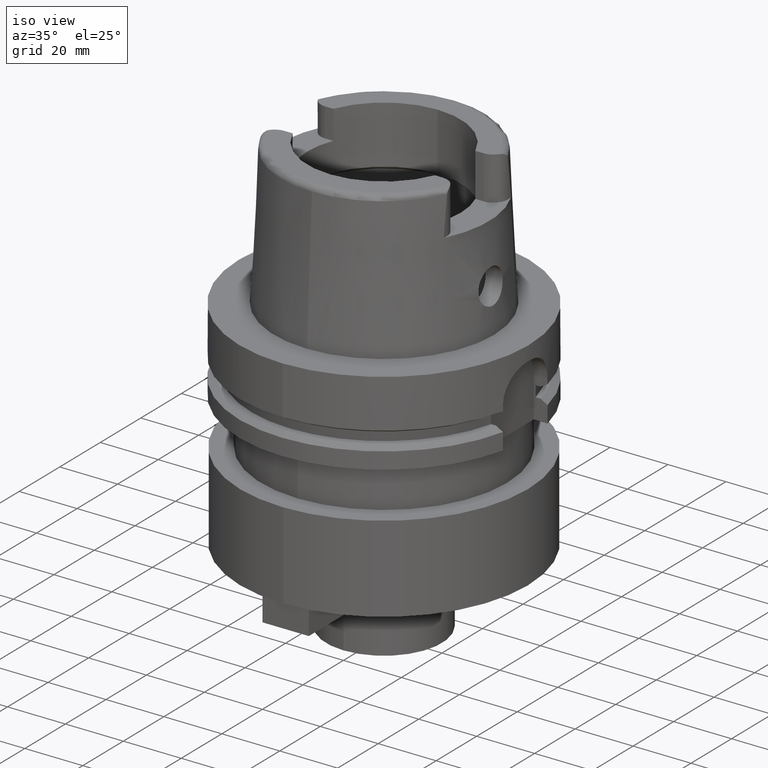
[diagram: clean part render]
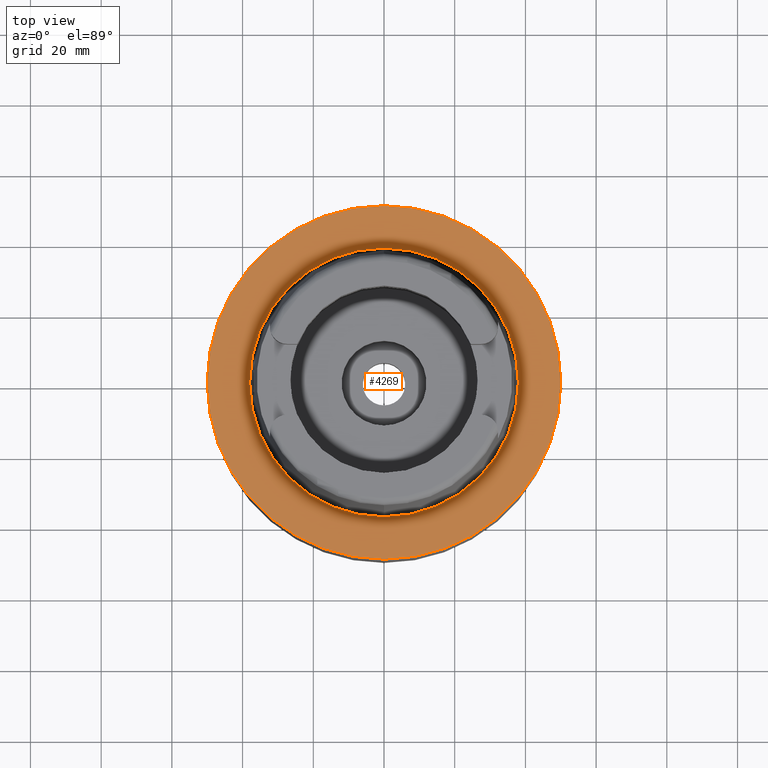
[diagram: tour spotlight — one face highlighted and labeled with its STEP entity id]
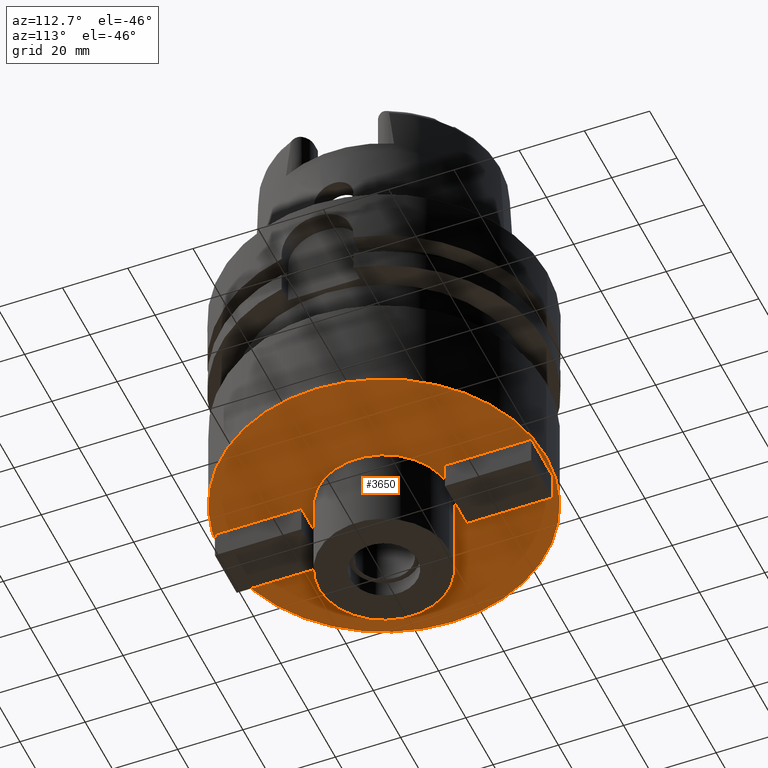
[diagram: tour spotlight — one face highlighted and labeled with its STEP entity id]
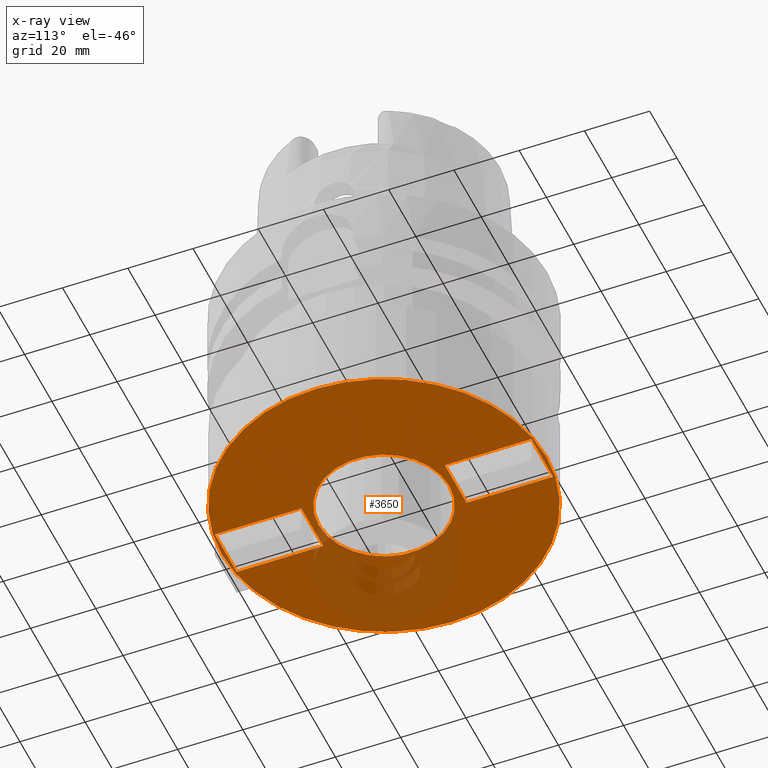
[diagram: x-ray of the same camera — body ghosted, this tour face saturated]
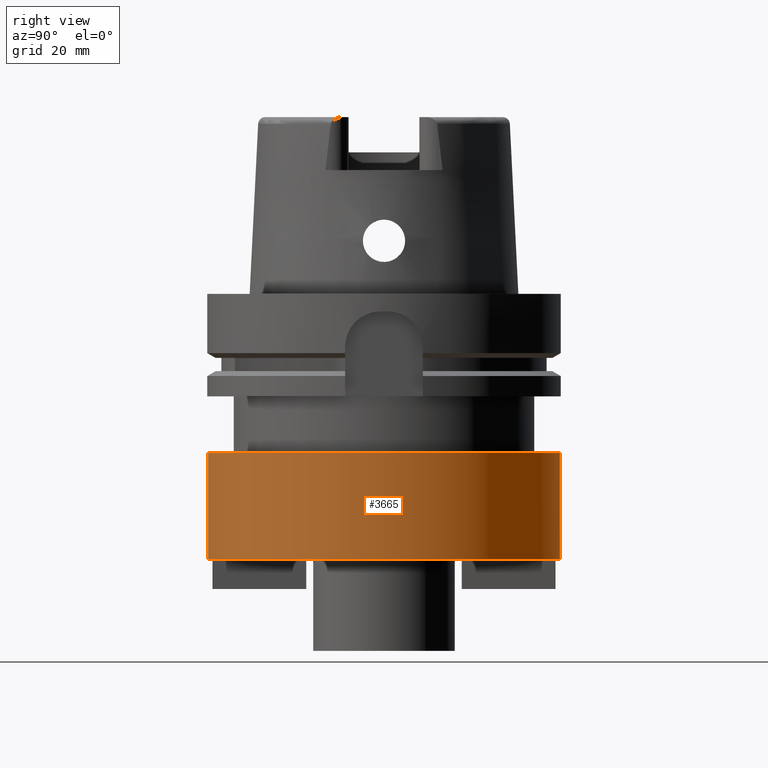
[diagram: tour spotlight — one face highlighted and labeled with its STEP entity id]
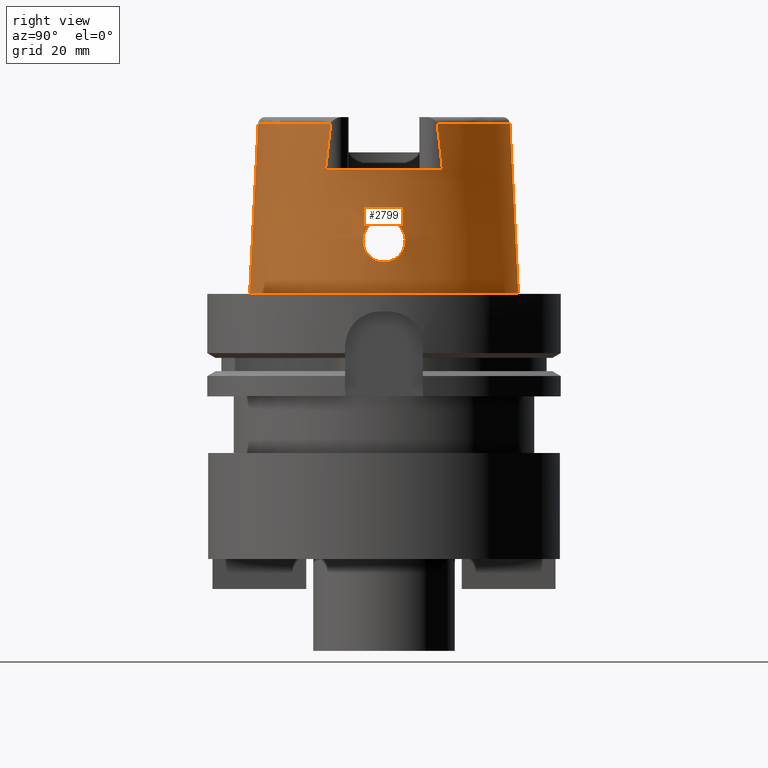
[diagram: tour spotlight — one face highlighted and labeled with its STEP entity id]
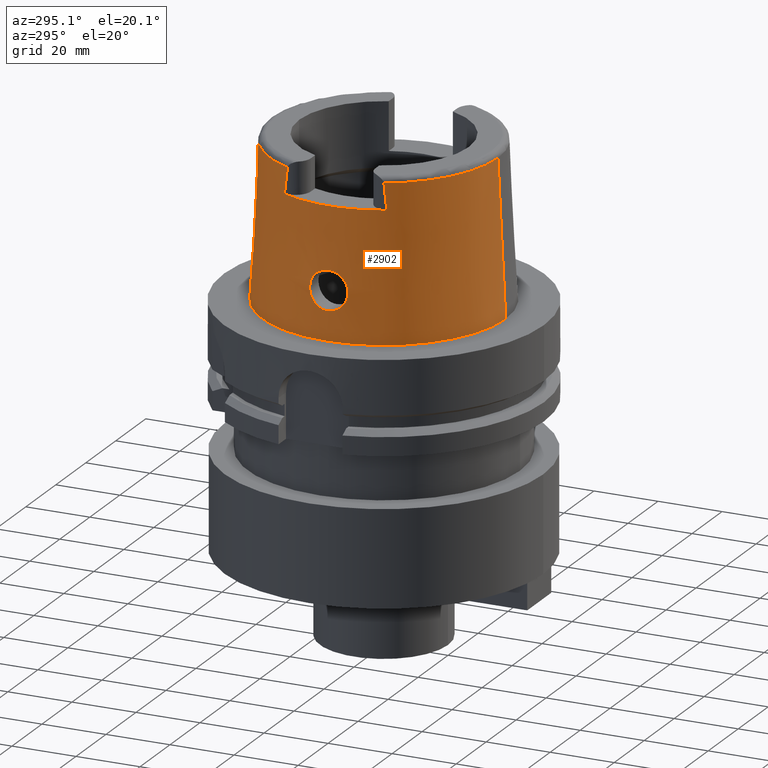
[diagram: tour spotlight — one face highlighted and labeled with its STEP entity id]
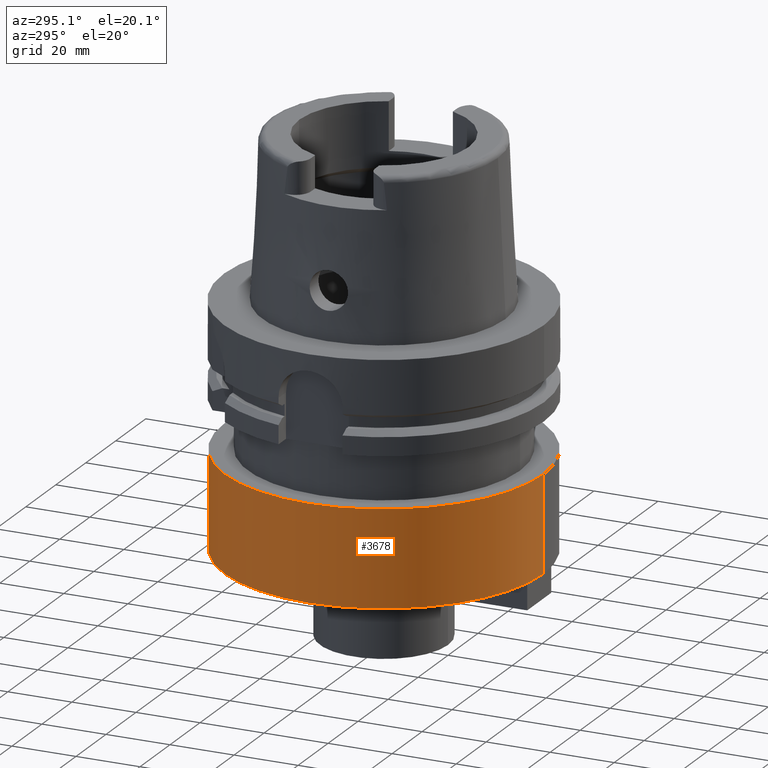
[diagram: tour spotlight — one face highlighted and labeled with its STEP entity id]
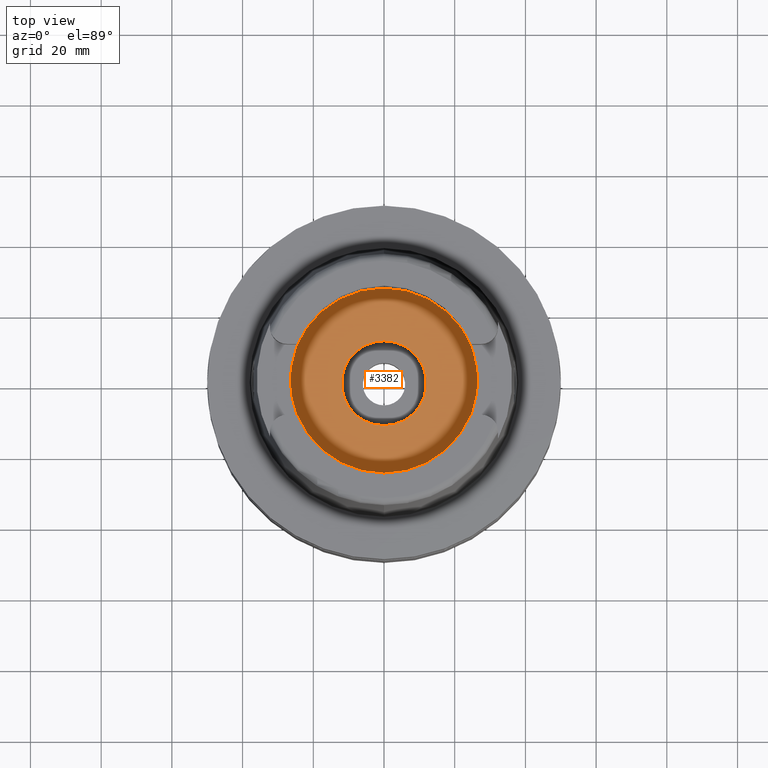
[diagram: tour spotlight — one face highlighted and labeled with its STEP entity id]
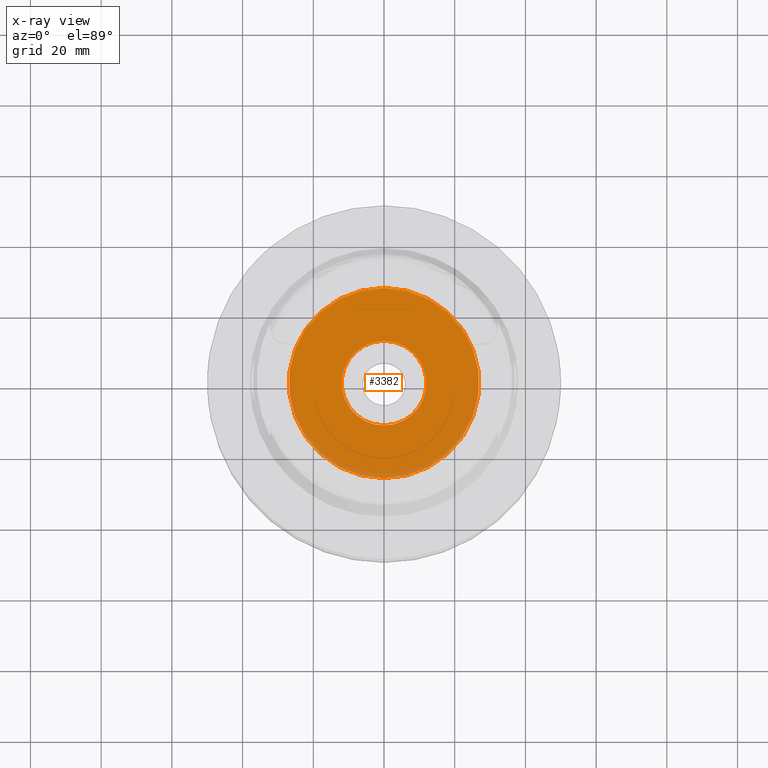
[diagram: x-ray of the same camera — body ghosted, this tour face saturated]
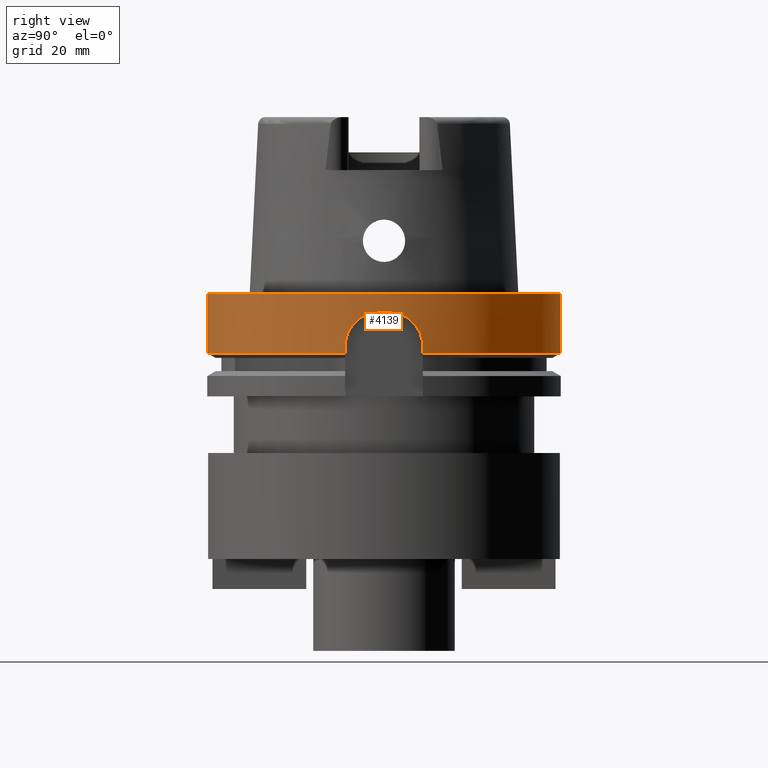
[diagram: tour spotlight — one face highlighted and labeled with its STEP entity id]
A machine part: a face-by-face anatomy tour. The part has 104 B-rep faces; the first image is the clean iso view, then the 8 largest visible faces are spotlighted one at a time (largest first), each with its STEP entity span.

Face 1 — top view, entity #4269. In plain terms, the highlighted planar face has unit normal (0, 0, -1).
Definition (entity closure, byte-faithful):
#2083=CARTESIAN_POINT('',(0.E0,1.929431032057E-14,-1.705302565824E-13));
#2084=DIRECTION('',(0.E0,0.E0,-1.E0));
#2085=DIRECTION('',(0.E0,-1.E0,0.E0));
#2086=AXIS2_PLACEMENT_3D('',#2083,#2084,#2085);
#2091=CARTESIAN_POINT('',(0.E0,1.929431032057E-14,-1.705302565824E-13));
#2092=DIRECTION('',(0.E0,0.E0,-1.E0));
#2093=DIRECTION('',(0.E0,1.E0,0.E0));
#2094=AXIS2_PLACEMENT_3D('',#2091,#2092,#2093);
#2099=CARTESIAN_POINT('',(0.E0,1.519173610602E-14,7.958078640513E-13));
#2100=DIRECTION('',(0.E0,0.E0,1.E0));
#2101=DIRECTION('',(0.E0,-1.E0,0.E0));
#2102=AXIS2_PLACEMENT_3D('',#2099,#2100,#2101);
#2107=CARTESIAN_POINT('',(0.E0,1.519173610602E-14,7.958078640513E-13));
#2108=DIRECTION('',(0.E0,0.E0,1.E0));
#2109=DIRECTION('',(0.E0,1.E0,0.E0));
#2110=AXIS2_PLACEMENT_3D('',#2107,#2108,#2109);
#2419=CARTESIAN_POINT('',(0.E0,3.800001658252E1,1.563194018672E-13));
#2420=VERTEX_POINT('',#2419);
#2421=CARTESIAN_POINT('',(0.E0,-3.800001658252E1,7.958078640513E-13));
#2422=VERTEX_POINT('',#2421);
#2500=CARTESIAN_POINT('',(0.E0,-5.E1,-1.705302565824E-13));
#2501=CARTESIAN_POINT('',(0.E0,5.E1,-1.705302565824E-13));
#2502=VERTEX_POINT('',#2500);
#2503=VERTEX_POINT('',#2501);
#4256=CARTESIAN_POINT('',(0.E0,1.224646799147E-14,1.421085471520E-14));
#4257=DIRECTION('',(0.E0,0.E0,-1.E0));
#4258=DIRECTION('',(0.E0,-1.E0,0.E0));
#4259=AXIS2_PLACEMENT_3D('',#4256,#4257,#4258);
#4260=PLANE('',#4259);
#4261=ORIENTED_EDGE('',*,*,#4021,.T.);
#4262=ORIENTED_EDGE('',*,*,#4130,.T.);
#4263=EDGE_LOOP('',(#4261,#4262));
#4264=FACE_OUTER_BOUND('',#4263,.F.);
#4265=ORIENTED_EDGE('',*,*,#2783,.T.);
#4266=ORIENTED_EDGE('',*,*,#2887,.T.);
#4267=EDGE_LOOP('',(#4265,#4266));
#4268=FACE_BOUND('',#4267,.F.);
#2087=CIRCLE('',#2086,5.E1);
#2095=CIRCLE('',#2094,5.E1);
#2103=CIRCLE('',#2102,3.800001658252E1);
#2111=CIRCLE('',#2110,3.800001658252E1);
#2783=EDGE_CURVE('',#2422,#2420,#2103,.T.);
#2887=EDGE_CURVE('',#2420,#2422,#2111,.T.);
#4021=EDGE_CURVE('',#2502,#2503,#2087,.T.);
#4130=EDGE_CURVE('',#2503,#2502,#2095,.T.);
#4269=ADVANCED_FACE('',(#4264,#4268),#4260,.F.);

Face 2 — auxiliary view, entity #3650. An x-ray twin of the same camera follows (body ghosted, this face saturated) — the face is partly hidden behind the body. In plain terms, the highlighted planar face has unit normal (0, 0, -1).
Definition (entity closure, byte-faithful):
#1200=CARTESIAN_POINT('',(0.E0,1.929431032057E-14,-7.5E1));
#1201=DIRECTION('',(0.E0,0.E0,1.E0));
#1202=DIRECTION('',(0.E0,-1.E0,0.E0));
#1203=AXIS2_PLACEMENT_3D('',#1200,#1201,#1202);
#1208=CARTESIAN_POINT('',(0.E0,1.929431032057E-14,-7.5E1));
#1209=DIRECTION('',(0.E0,0.E0,1.E0));
#1210=DIRECTION('',(0.E0,1.E0,0.E0));
#1211=AXIS2_PLACEMENT_3D('',#1208,#1209,#1210);
#1216=CARTESIAN_POINT('',(0.E0,1.929431032057E-14,-7.5E1));
#1217=DIRECTION('',(0.E0,0.E0,-1.E0));
#1218=DIRECTION('',(0.E0,-1.E0,0.E0));
#1219=AXIS2_PLACEMENT_3D('',#1216,#1217,#1218);
#1224=CARTESIAN_POINT('',(0.E0,1.929431032057E-14,-7.5E1));
#1225=DIRECTION('',(0.E0,0.E0,-1.E0));
#1226=DIRECTION('',(0.E0,1.E0,0.E0));
#1227=AXIS2_PLACEMENT_3D('',#1224,#1225,#1226);
#1232=DIRECTION('',(0.E0,1.E0,0.E0));
#1233=VECTOR('',#1232,2.65E1);
#1234=CARTESIAN_POINT('',(-8.E0,2.2E1,-7.5E1));
#1235=LINE('',#1234,#1233);
#1239=DIRECTION('',(-1.E0,0.E0,0.E0));
#1240=VECTOR('',#1239,1.6E1);
#1241=CARTESIAN_POINT('',(8.E0,2.2E1,-7.5E1));
#1242=LINE('',#1241,#1240);
#1246=DIRECTION('',(0.E0,-1.E0,0.E0));
#1247=VECTOR('',#1246,2.65E1);
#1248=CARTESIAN_POINT('',(8.E0,-2.2E1,-7.5E1));
#1249=LINE('',#1248,#1247);
#1253=DIRECTION('',(1.E0,0.E0,0.E0));
#1254=VECTOR('',#1253,1.6E1);
#1255=CARTESIAN_POINT('',(-8.E0,-2.2E1,-7.5E1));
#1256=LINE('',#1255,#1254);
#2270=DIRECTION('',(0.E0,1.E0,0.E0));
#2271=VECTOR('',#2270,2.65E1);
#2272=CARTESIAN_POINT('',(8.E0,2.2E1,-7.5E1));
#2273=LINE('',#2272,#2271);
#2298=DIRECTION('',(-1.E0,0.E0,0.E0));
#2299=VECTOR('',#2298,1.6E1);
#2300=CARTESIAN_POINT('',(8.E0,4.85E1,-7.5E1));
#2301=LINE('',#2300,#2299);
#2340=DIRECTION('',(0.E0,-1.E0,0.E0));
#2341=VECTOR('',#2340,2.65E1);
#2342=CARTESIAN_POINT('',(-8.E0,-2.2E1,-7.5E1));
#2343=LINE('',#2342,#2341);
#2368=DIRECTION('',(1.E0,0.E0,0.E0));
#2369=VECTOR('',#2368,1.6E1);
#2370=CARTESIAN_POINT('',(-8.E0,-4.85E1,-7.5E1));
#2371=LINE('',#2370,#2369);
#2572=CARTESIAN_POINT('',(0.E0,4.975E1,-7.5E1));
#2573=VERTEX_POINT('',#2572);
#2574=CARTESIAN_POINT('',(0.E0,-4.975E1,-7.5E1));
#2575=VERTEX_POINT('',#2574);
#2576=CARTESIAN_POINT('',(0.E0,-2.E1,-7.5E1));
#2577=CARTESIAN_POINT('',(0.E0,2.E1,-7.5E1));
#2578=VERTEX_POINT('',#2576);
#2579=VERTEX_POINT('',#2577);
#2580=CARTESIAN_POINT('',(-8.E0,2.2E1,-7.5E1));
#2581=CARTESIAN_POINT('',(-8.E0,4.85E1,-7.5E1));
#2582=VERTEX_POINT('',#2580);
#2583=VERTEX_POINT('',#2581);
#2584=CARTESIAN_POINT('',(8.E0,4.85E1,-7.5E1));
#2585=VERTEX_POINT('',#2584);
#2586=CARTESIAN_POINT('',(8.E0,2.2E1,-7.5E1));
#2587=VERTEX_POINT('',#2586);
#2588=CARTESIAN_POINT('',(8.E0,-2.2E1,-7.5E1));
#2589=CARTESIAN_POINT('',(8.E0,-4.85E1,-7.5E1));
#2590=VERTEX_POINT('',#2588);
#2591=VERTEX_POINT('',#2589);
#2592=CARTESIAN_POINT('',(-8.E0,-4.85E1,-7.5E1));
#2593=VERTEX_POINT('',#2592);
#2594=CARTESIAN_POINT('',(-8.E0,-2.2E1,-7.5E1));
#2595=VERTEX_POINT('',#2594);
#3615=CARTESIAN_POINT('',(0.E0,0.E0,-7.5E1));
#3616=DIRECTION('',(0.E0,0.E0,-1.E0));
#3617=DIRECTION('',(0.E0,-1.E0,0.E0));
#3618=AXIS2_PLACEMENT_3D('',#3615,#3616,#3617);
#3619=PLANE('',#3618);
#3621=ORIENTED_EDGE('',*,*,#3620,.T.);
#3623=ORIENTED_EDGE('',*,*,#3622,.T.);
#3624=EDGE_LOOP('',(#3621,#3623));
#3625=FACE_OUTER_BOUND('',#3624,.F.);
#3626=ORIENTED_EDGE('',*,*,#3608,.T.);
#3627=ORIENTED_EDGE('',*,*,#3597,.T.);
#3628=EDGE_LOOP('',(#3626,#3627));
#3629=FACE_BOUND('',#3628,.F.);
#3631=ORIENTED_EDGE('',*,*,#3630,.T.);
#3633=ORIENTED_EDGE('',*,*,#3632,.F.);
#3635=ORIENTED_EDGE('',*,*,#3634,.F.);
#3637=ORIENTED_EDGE('',*,*,#3636,.T.);
#3638=EDGE_LOOP('',(#3631,#3633,#3635,#3637));
#3639=FACE_BOUND('',#3638,.F.);
#3641=ORIENTED_EDGE('',*,*,#3640,.T.);
#3643=ORIENTED_EDGE('',*,*,#3642,.F.);
#3645=ORIENTED_EDGE('',*,*,#3644,.F.);
#3647=ORIENTED_EDGE('',*,*,#3646,.T.);
#3648=EDGE_LOOP('',(#3641,#3643,#3645,#3647));
#3649=FACE_BOUND('',#3648,.F.);
#1204=CIRCLE('',#1203,4.975E1);
#1212=CIRCLE('',#1211,4.975E1);
#1220=CIRCLE('',#1219,2.E1);
#1228=CIRCLE('',#1227,2.E1);
#3597=EDGE_CURVE('',#2579,#2578,#1228,.T.);
#3608=EDGE_CURVE('',#2578,#2579,#1220,.T.);
#3620=EDGE_CURVE('',#2575,#2573,#1204,.T.);
#3622=EDGE_CURVE('',#2573,#2575,#1212,.T.);
#3630=EDGE_CURVE('',#2582,#2583,#1235,.T.);
#3632=EDGE_CURVE('',#2585,#2583,#2301,.T.);
#3634=EDGE_CURVE('',#2587,#2585,#2273,.T.);
#3636=EDGE_CURVE('',#2587,#2582,#1242,.T.);
#3640=EDGE_CURVE('',#2590,#2591,#1249,.T.);
#3642=EDGE_CURVE('',#2593,#2591,#2371,.T.);
#3644=EDGE_CURVE('',#2595,#2593,#2343,.T.);
#3646=EDGE_CURVE('',#2595,#2590,#1256,.T.);
#3650=ADVANCED_FACE('',(#3625,#3629,#3639,#3649),#3619,.T.);

Face 3 — right view, entity #3665. In plain terms, the highlighted cylindrical surface (partial cylindrical patch) has radius 49.75 mm, axis along (0, 0, -1).
Definition (entity closure, byte-faithful):
#1200=CARTESIAN_POINT('',(0.E0,1.929431032057E-14,-7.5E1));
#1201=DIRECTION('',(0.E0,0.E0,1.E0));
#1202=DIRECTION('',(0.E0,-1.E0,0.E0));
#1203=AXIS2_PLACEMENT_3D('',#1200,#1201,#1202);
#1260=DIRECTION('',(0.E0,0.E0,-1.E0));
#1261=VECTOR('',#1260,3.E1);
#1262=CARTESIAN_POINT('',(0.E0,4.975E1,-4.5E1));
#1263=LINE('',#1262,#1261);
#1267=DIRECTION('',(0.E0,0.E0,-1.E0));
#1268=VECTOR('',#1267,3.E1);
#1269=CARTESIAN_POINT('',(0.E0,-4.975E1,-4.5E1));
#1270=LINE('',#1269,#1268);
#1282=CARTESIAN_POINT('',(0.E0,1.929431032057E-14,-4.5E1));
#1283=DIRECTION('',(0.E0,0.E0,-1.E0));
#1284=DIRECTION('',(0.E0,1.E0,0.E0));
#1285=AXIS2_PLACEMENT_3D('',#1282,#1283,#1284);
#2568=CARTESIAN_POINT('',(0.E0,-4.975E1,-4.5E1));
#2569=CARTESIAN_POINT('',(0.E0,4.975E1,-4.5E1));
#2570=VERTEX_POINT('',#2568);
#2571=VERTEX_POINT('',#2569);
#2572=CARTESIAN_POINT('',(0.E0,4.975E1,-7.5E1));
#2573=VERTEX_POINT('',#2572);
#2574=CARTESIAN_POINT('',(0.E0,-4.975E1,-7.5E1));
#2575=VERTEX_POINT('',#2574);
#3651=CARTESIAN_POINT('',(0.E0,1.929431032057E-14,5.755E1));
#3652=DIRECTION('',(0.E0,0.E0,-1.E0));
#3653=DIRECTION('',(0.E0,-1.E0,0.E0));
#3654=AXIS2_PLACEMENT_3D('',#3651,#3652,#3653);
#3655=CYLINDRICAL_SURFACE('',#3654,4.975E1);
#3657=ORIENTED_EDGE('',*,*,#3656,.T.);
#3658=ORIENTED_EDGE('',*,*,#3620,.F.);
#3660=ORIENTED_EDGE('',*,*,#3659,.F.);
#3662=ORIENTED_EDGE('',*,*,#3661,.F.);
#3663=EDGE_LOOP('',(#3657,#3658,#3660,#3662));
#3664=FACE_OUTER_BOUND('',#3663,.F.);
#1204=CIRCLE('',#1203,4.975E1);
#1286=CIRCLE('',#1285,4.975E1);
#3620=EDGE_CURVE('',#2575,#2573,#1204,.T.);
#3656=EDGE_CURVE('',#2571,#2573,#1263,.T.);
#3659=EDGE_CURVE('',#2570,#2575,#1270,.T.);
#3661=EDGE_CURVE('',#2571,#2570,#1286,.T.);
#3665=ADVANCED_FACE('',(#3664),#3655,.T.);

Face 4 — right view, entity #2799. In plain terms, the highlighted conical surface has half-angle 2.862 deg.
Definition (entity closure, byte-faithful):
#17=DIRECTION('',(0.E0,4.993926899645E-2,-9.987522562738E-1));
#18=VECTOR('',#17,4.815996983821E1);
#19=CARTESIAN_POINT('',(0.E0,3.559494289391E1,4.809987853799E1));
#20=LINE('',#19,#18);
#25=CARTESIAN_POINT('',(3.694998175923E1,-1.453351852992E-13,2.1E1));
#26=CARTESIAN_POINT('',(3.694998175923E1,-4.801280123607E-1,2.1E1));
#27=CARTESIAN_POINT('',(3.693669319942E1,-1.443240434194E0,2.088405640615E1));
#28=CARTESIAN_POINT('',(3.688219228199E1,-2.812998146903E0,2.036729304653E1));
#29=CARTESIAN_POINT('',(3.680958090761E1,-4.024179920125E0,1.952876053762E1));
#30=CARTESIAN_POINT('',(3.674458528050E1,-4.980032392374E0,1.844868473237E1));
#31=CARTESIAN_POINT('',(3.670930577214E1,-5.660275795874E0,1.715987257157E1));
#32=CARTESIAN_POINT('',(3.672371879651E1,-6.010829904194E0,1.575281006616E1));
#33=CARTESIAN_POINT('',(3.679610233900E1,-6.017202924905E0,1.430376885249E1));
#34=CARTESIAN_POINT('',(3.692159735308E1,-5.682174103512E0,1.289780233015E1));
#35=CARTESIAN_POINT('',(3.708642351078E1,-5.010130986867E0,1.159381018924E1));
#36=CARTESIAN_POINT('',(3.726069066043E1,-4.055137605452E0,1.049627467973E1));
#37=CARTESIAN_POINT('',(3.742022677622E1,-2.819481714578E0,9.633227165347E0));
#38=CARTESIAN_POINT('',(3.752608866987E1,-1.432120867787E0,9.112873209900E0));
#39=CARTESIAN_POINT('',(3.755000165825E1,-4.739148000106E-1,9.E0));
#40=CARTESIAN_POINT('',(3.755000165825E1,0.E0,9.E0));
#45=CARTESIAN_POINT('',(3.755000165825E1,0.E0,9.E0));
#46=CARTESIAN_POINT('',(3.755000165825E1,4.748999544915E-1,9.E0));
#47=CARTESIAN_POINT('',(3.752589575486E1,1.429289526028E0,9.113858530762E0));
#48=CARTESIAN_POINT('',(3.742286510898E1,2.788697128326E0,9.620222145146E0));
#49=CARTESIAN_POINT('',(3.726786900046E1,4.006605809847E0,1.045608686798E1));
#50=CARTESIAN_POINT('',(3.709647945904E1,4.961997937919E0,1.152491716028E1));
#51=CARTESIAN_POINT('',(3.692898087362E1,5.657830688933E0,1.282831427270E1));
#52=CARTESIAN_POINT('',(3.679933516904E1,6.012993791929E0,1.425385818249E1));
#53=CARTESIAN_POINT('',(3.672467006949E1,6.015610255068E0,1.571838823549E1));
#54=CARTESIAN_POINT('',(3.670906001926E1,5.672252550052E0,1.712733308062E1));
#55=CARTESIAN_POINT('',(3.674319951499E1,5.001218029893E0,1.841808712726E1));
#56=CARTESIAN_POINT('',(3.680800140083E1,4.047950657717E0,1.950844232133E1));
#57=CARTESIAN_POINT('',(3.688125284373E1,2.832559527934E0,2.035805773491E1));
#58=CARTESIAN_POINT('',(3.693653526722E1,1.452454892035E0,2.088273689475E1));
#59=CARTESIAN_POINT('',(3.694998175923E1,4.830700755870E-1,2.1E1));
#60=CARTESIAN_POINT('',(3.694998175923E1,-1.453351852992E-13,2.1E1));
#65=CARTESIAN_POINT('',(0.E0,1.519173610602E-14,3.5E1));
#66=DIRECTION('',(0.E0,0.E0,-1.E0));
#67=DIRECTION('',(8.896561898443E-1,4.566309931135E-1,0.E0));
#68=AXIS2_PLACEMENT_3D('',#65,#66,#67);
#125=CARTESIAN_POINT('',(3.224999527510E1,-1.655287543507E1,3.5E1));
#126=CARTESIAN_POINT('',(3.224999527510E1,-1.639341859026E1,3.645621288231E1));
#127=CARTESIAN_POINT('',(3.224999957996E1,-1.607118640204E1,3.936829812761E1));
#128=CARTESIAN_POINT('',(3.225000855749E1,-1.557477302753E1,4.373473877319E1));
#129=CARTESIAN_POINT('',(3.224998031256E1,-1.523637801183E1,4.664538126212E1));
#130=CARTESIAN_POINT('',(3.224998031256E1,-1.506460498941E1,4.809929616755E1));
#187=CARTESIAN_POINT('',(0.E0,1.812477262738E-14,4.809987853799E1));
#188=DIRECTION('',(0.E0,0.E0,-1.E0));
#189=DIRECTION('',(9.060259215417E-1,-4.232221987260E-1,0.E0));
#190=AXIS2_PLACEMENT_3D('',#187,#188,#189);
#221=DIRECTION('',(0.E0,-4.993926899645E-2,-9.987522562738E-1));
#222=VECTOR('',#221,4.815996983821E1);
#223=CARTESIAN_POINT('',(0.E0,-3.559494289391E1,4.809987853799E1));
#224=LINE('',#223,#222);
#372=CARTESIAN_POINT('',(0.E0,1.812477262738E-14,4.809987853799E1));
#373=DIRECTION('',(0.E0,0.E0,-1.E0));
#374=DIRECTION('',(0.E0,1.E0,0.E0));
#375=AXIS2_PLACEMENT_3D('',#372,#373,#374);
#380=CARTESIAN_POINT('',(0.E0,1.812477262738E-14,4.809987853799E1));
#381=DIRECTION('',(0.E0,0.E0,-1.E0));
#382=DIRECTION('',(5.943840407725E-4,9.999998233538E-1,0.E0));
#383=AXIS2_PLACEMENT_3D('',#380,#381,#382);
#490=CARTESIAN_POINT('',(3.225000552017E1,1.506439888022E1,4.810003663950E1));
#491=CARTESIAN_POINT('',(3.225000552017E1,1.523630632115E1,4.664499963069E1));
#492=CARTESIAN_POINT('',(3.225000026293E1,1.557504653025E1,4.373494475287E1));
#493=CARTESIAN_POINT('',(3.224999079949E1,1.607149002116E1,3.936828125950E1));
#494=CARTESIAN_POINT('',(3.225002129258E1,1.639330335239E1,3.645620266028E1));
#495=CARTESIAN_POINT('',(3.225002129258E1,1.655276054280E1,3.5E1));
#2099=CARTESIAN_POINT('',(0.E0,1.519173610602E-14,7.958078640513E-13));
#2100=DIRECTION('',(0.E0,0.E0,1.E0));
#2101=DIRECTION('',(0.E0,-1.E0,0.E0));
#2102=AXIS2_PLACEMENT_3D('',#2099,#2100,#2101);
#2410=CARTESIAN_POINT('',(3.225E1,1.655285457013E1,3.5E1));
#2411=CARTESIAN_POINT('',(3.225E1,-1.655285457013E1,3.5E1));
#2412=VERTEX_POINT('',#2410);
#2413=VERTEX_POINT('',#2411);
#2414=VERTEX_POINT('',#490);
#2415=CARTESIAN_POINT('',(2.115706598835E-2,3.559493660620E1,4.809987853799E1));
#2416=VERTEX_POINT('',#2415);
#2417=CARTESIAN_POINT('',(0.E0,3.559494289391E1,4.809987853799E1));
#2418=VERTEX_POINT('',#2417);
#2419=CARTESIAN_POINT('',(0.E0,3.800001658252E1,1.563194018672E-13));
#2420=VERTEX_POINT('',#2419);
#2421=CARTESIAN_POINT('',(0.E0,-3.800001658252E1,7.958078640513E-13));
#2422=VERTEX_POINT('',#2421);
#2423=CARTESIAN_POINT('',(0.E0,-3.559494289391E1,4.809987853799E1));
#2424=VERTEX_POINT('',#2423);
#2425=CARTESIAN_POINT('',(3.224994093768E1,-1.506456999509E1,4.809987853799E1));
#2426=VERTEX_POINT('',#2425);
#2427=VERTEX_POINT('',#25);
#2428=VERTEX_POINT('',#40);
#2768=CARTESIAN_POINT('',(0.E0,1.519173610602E-14,2.404993926900E1));
#2769=DIRECTION('',(0.E0,0.E0,-1.E0));
#2770=DIRECTION('',(0.E0,-1.E0,0.E0));
#2771=AXIS2_PLACEMENT_3D('',#2768,#2769,#2770);
#2772=CONICAL_SURFACE('',#2771,3.679747973821E1,2.8625E0);
#2774=ORIENTED_EDGE('',*,*,#2773,.F.);
#2776=ORIENTED_EDGE('',*,*,#2775,.F.);
#2778=ORIENTED_EDGE('',*,*,#2777,.F.);
#2780=ORIENTED_EDGE('',*,*,#2779,.F.);
#2782=ORIENTED_EDGE('',*,*,#2781,.T.);
#2784=ORIENTED_EDGE('',*,*,#2783,.F.);
#2786=ORIENTED_EDGE('',*,*,#2785,.F.);
#2788=ORIENTED_EDGE('',*,*,#2787,.F.);
#2790=ORIENTED_EDGE('',*,*,#2789,.F.);
#2791=EDGE_LOOP('',(#2774,#2776,#2778,#2780,#2782,#2784,#2786,#2788,#2790));
#2792=FACE_OUTER_BOUND('',#2791,.F.);
#2794=ORIENTED_EDGE('',*,*,#2793,.T.);
#2796=ORIENTED_EDGE('',*,*,#2795,.T.);
#2797=EDGE_LOOP('',(#2794,#2796));
#2798=FACE_BOUND('',#2797,.F.);
#41=B_SPLINE_CURVE_WITH_KNOTS('',3,(#25,#26,#27,#28,#29,#30,#31,#32,#33,#34,#35,
#36,#37,#38,#39,#40),.UNSPECIFIED.,.F.,.F.,(4,1,1,1,1,1,1,1,1,1,1,1,1,4),(0.E0,
7.692307692308E-2,1.538461538462E-1,2.307692307692E-1,3.076923076923E-1,
3.846153846154E-1,4.615384615385E-1,5.384615384615E-1,6.153846153846E-1,
6.923076923077E-1,7.692307692308E-1,8.461538461538E-1,9.230769230769E-1,1.E0),
.UNSPECIFIED.);
#61=B_SPLINE_CURVE_WITH_KNOTS('',3,(#45,#46,#47,#48,#49,#50,#51,#52,#53,#54,#55,
#56,#57,#58,#59,#60),.UNSPECIFIED.,.F.,.F.,(4,1,1,1,1,1,1,1,1,1,1,1,1,4),(0.E0,
7.692307692308E-2,1.538461538462E-1,2.307692307692E-1,3.076923076923E-1,
3.846153846154E-1,4.615384615385E-1,5.384615384615E-1,6.153846153846E-1,
6.923076923077E-1,7.692307692308E-1,8.461538461538E-1,9.230769230769E-1,1.E0),
.UNSPECIFIED.);
#69=CIRCLE('',#68,3.624995854370E1);
#131=B_SPLINE_CURVE_WITH_KNOTS('',3,(#125,#126,#127,#128,#129,#130),
.UNSPECIFIED.,.F.,.F.,(4,1,1,4),(0.E0,3.333333333333E-1,6.666666666667E-1,1.E0),
.UNSPECIFIED.);
#191=CIRCLE('',#190,3.559494289391E1);
#376=CIRCLE('',#375,3.559494289391E1);
#384=CIRCLE('',#383,3.559494289391E1);
#496=B_SPLINE_CURVE_WITH_KNOTS('',3,(#490,#491,#492,#493,#494,#495),
.UNSPECIFIED.,.F.,.F.,(4,1,1,4),(0.E0,3.333333333333E-1,6.666666666667E-1,1.E0),
.UNSPECIFIED.);
#2103=CIRCLE('',#2102,3.800001658252E1);
#2773=EDGE_CURVE('',#2412,#2413,#69,.T.);
#2775=EDGE_CURVE('',#2414,#2412,#496,.T.);
#2777=EDGE_CURVE('',#2416,#2414,#384,.T.);
#2779=EDGE_CURVE('',#2418,#2416,#376,.T.);
#2781=EDGE_CURVE('',#2418,#2420,#20,.T.);
#2783=EDGE_CURVE('',#2422,#2420,#2103,.T.);
#2785=EDGE_CURVE('',#2424,#2422,#224,.T.);
#2787=EDGE_CURVE('',#2426,#2424,#191,.T.);
#2789=EDGE_CURVE('',#2413,#2426,#131,.T.);
#2793=EDGE_CURVE('',#2427,#2428,#41,.T.);
#2795=EDGE_CURVE('',#2428,#2427,#61,.T.);
#2799=ADVANCED_FACE('',(#2792,#2798),#2772,.T.);

Face 5 — auxiliary view, entity #2902. In plain terms, the highlighted conical surface has half-angle 2.862 deg.
Definition (entity closure, byte-faithful):
#17=DIRECTION('',(0.E0,4.993926899645E-2,-9.987522562738E-1));
#18=VECTOR('',#17,4.815996983821E1);
#19=CARTESIAN_POINT('',(0.E0,3.559494289391E1,4.809987853799E1));
#20=LINE('',#19,#18);
#135=CARTESIAN_POINT('',(-3.225000136841E1,-1.506443242645E1,4.809991798993E1));
#195=CARTESIAN_POINT('',(0.E0,1.812477262738E-14,4.809987853799E1));
#196=DIRECTION('',(0.E0,0.E0,-1.E0));
#197=DIRECTION('',(0.E0,-1.E0,0.E0));
#198=AXIS2_PLACEMENT_3D('',#195,#196,#197);
#203=CARTESIAN_POINT('',(0.E0,1.812477262738E-14,4.809987853799E1));
#204=DIRECTION('',(0.E0,0.E0,-1.E0));
#205=DIRECTION('',(-5.943840407726E-4,-9.999998233538E-1,0.E0));
#206=AXIS2_PLACEMENT_3D('',#203,#204,#205);
#211=CARTESIAN_POINT('',(-3.225000136841E1,-1.506443242645E1,4.809991798993E1));
#212=CARTESIAN_POINT('',(-3.225000136841E1,-1.517073428504E1,4.720016978065E1));
#213=CARTESIAN_POINT('',(-3.225000007420E1,-1.538143423856E1,4.540060288687E1));
#214=CARTESIAN_POINT('',(-3.224999768767E1,-1.569267654059E1,4.270063415679E1));
#215=CARTESIAN_POINT('',(-3.225000534596E1,-1.589661452375E1,4.090026265533E1));
#216=CARTESIAN_POINT('',(-3.225000534596E1,-1.599791057086E1,4.E1));
#221=DIRECTION('',(0.E0,-4.993926899645E-2,-9.987522562738E-1));
#222=VECTOR('',#221,4.815996983821E1);
#223=CARTESIAN_POINT('',(0.E0,-3.559494289391E1,4.809987853799E1));
#224=LINE('',#223,#222);
#228=CARTESIAN_POINT('',(-3.755000165825E1,1.566668420176E-13,9.E0));
#229=CARTESIAN_POINT('',(-3.755000165825E1,-4.749054511194E-1,9.E0));
#230=CARTESIAN_POINT('',(-3.752589526453E1,-1.429301640459E0,9.113860747499E0));
#231=CARTESIAN_POINT('',(-3.742286370472E1,-2.788708925762E0,9.620229565798E0));
#232=CARTESIAN_POINT('',(-3.726786986130E1,-4.006599026314E0,1.045608224181E1));
#233=CARTESIAN_POINT('',(-3.709648021750E1,-4.961994679602E0,1.152491188742E1));
#234=CARTESIAN_POINT('',(-3.692898122145E1,-5.657829777919E0,1.282831031776E1));
#235=CARTESIAN_POINT('',(-3.679933454739E1,-6.012995364652E0,1.425386539919E1));
#236=CARTESIAN_POINT('',(-3.672466989966E1,-6.015608921143E0,1.571839589420E1));
#237=CARTESIAN_POINT('',(-3.670906008313E1,-5.672251611369E0,1.712733473150E1));
#238=CARTESIAN_POINT('',(-3.674319948737E1,-5.001218493911E0,1.841808519141E1));
#239=CARTESIAN_POINT('',(-3.680800100991E1,-4.047957084558E0,1.950843766404E1));
#240=CARTESIAN_POINT('',(-3.688125346353E1,-2.832548657679E0,2.035806458788E1));
#241=CARTESIAN_POINT('',(-3.693653544015E1,-1.452446454892E0,2.088273819942E1));
#242=CARTESIAN_POINT('',(-3.694998175923E1,-4.830662186844E-1,2.1E1));
#243=CARTESIAN_POINT('',(-3.694998175923E1,0.E0,2.1E1));
#248=CARTESIAN_POINT('',(-3.694998175923E1,0.E0,2.1E1));
#249=CARTESIAN_POINT('',(-3.694998175923E1,4.801328572391E-1,2.1E1));
#250=CARTESIAN_POINT('',(-3.693669297222E1,1.443251036220E0,2.088405462202E1));
#251=CARTESIAN_POINT('',(-3.688219158419E1,2.813010368451E0,2.036728539420E1));
#252=CARTESIAN_POINT('',(-3.680958135682E1,4.024172416269E0,1.952876566959E1));
#253=CARTESIAN_POINT('',(-3.674458560316E1,4.980027713725E0,1.844869179154E1));
#254=CARTESIAN_POINT('',(-3.670930589670E1,5.660271521796E0,1.715988327365E1));
#255=CARTESIAN_POINT('',(-3.672371844674E1,6.010829668375E0,1.575281784719E1));
#256=CARTESIAN_POINT('',(-3.679610233847E1,6.017202906551E0,1.430376882018E1));
#257=CARTESIAN_POINT('',(-3.692159675780E1,5.682175991914E0,1.289780833818E1));
#258=CARTESIAN_POINT('',(-3.708642264893E1,5.010134621904E0,1.159381632762E1));
#259=CARTESIAN_POINT('',(-3.726068938228E1,4.055146781866E0,1.049628180655E1));
#260=CARTESIAN_POINT('',(-3.742022775329E1,2.819474094019E0,9.633221895856E0));
#261=CARTESIAN_POINT('',(-3.752608896049E1,1.432113258030E0,9.112871944281E0));
#262=CARTESIAN_POINT('',(-3.755000165825E1,4.739111660126E-1,9.E0));
#263=CARTESIAN_POINT('',(-3.755000165825E1,1.566668420176E-13,9.E0));
#268=CARTESIAN_POINT('',(0.E0,1.519173610602E-14,4.E1));
#269=DIRECTION('',(0.E0,0.E0,-1.E0));
#270=DIRECTION('',(-8.958345712660E-1,-4.443876921391E-1,0.E0));
#271=AXIS2_PLACEMENT_3D('',#268,#269,#270);
#328=CARTESIAN_POINT('',(-3.224999876010E1,1.599794043160E1,4.E1));
#329=CARTESIAN_POINT('',(-3.224999876010E1,1.589664432909E1,4.090026538897E1));
#330=CARTESIAN_POINT('',(-3.224999990105E1,1.569259870634E1,4.270063838356E1));
#331=CARTESIAN_POINT('',(-3.225000220619E1,1.538136380621E1,4.540054972498E1));
#332=CARTESIAN_POINT('',(-3.224999491818E1,1.517075284416E1,4.720026816087E1));
#333=CARTESIAN_POINT('',(-3.224999491818E1,1.506448545478E1,4.809972709306E1));
#359=CARTESIAN_POINT('',(-3.224999491818E1,1.506448545478E1,4.809972709306E1));
#364=CARTESIAN_POINT('',(0.E0,1.812477262738E-14,4.809987853799E1));
#365=DIRECTION('',(0.E0,0.E0,-1.E0));
#366=DIRECTION('',(-9.060271525277E-1,4.232195634449E-1,0.E0));
#367=AXIS2_PLACEMENT_3D('',#364,#365,#366);
#2107=CARTESIAN_POINT('',(0.E0,1.519173610602E-14,7.958078640513E-13));
#2108=DIRECTION('',(0.E0,0.E0,1.E0));
#2109=DIRECTION('',(0.E0,1.E0,0.E0));
#2110=AXIS2_PLACEMENT_3D('',#2107,#2108,#2109);
#2417=CARTESIAN_POINT('',(0.E0,3.559494289391E1,4.809987853799E1));
#2418=VERTEX_POINT('',#2417);
#2419=CARTESIAN_POINT('',(0.E0,3.800001658252E1,1.563194018672E-13));
#2420=VERTEX_POINT('',#2419);
#2421=CARTESIAN_POINT('',(0.E0,-3.800001658252E1,7.958078640513E-13));
#2422=VERTEX_POINT('',#2421);
#2423=CARTESIAN_POINT('',(0.E0,-3.559494289391E1,4.809987853799E1));
#2424=VERTEX_POINT('',#2423);
#2444=VERTEX_POINT('',#359);
#2449=VERTEX_POINT('',#135);
#2456=CARTESIAN_POINT('',(-2.115706598835E-2,-3.559493660620E1,
4.809987853799E1));
#2457=VERTEX_POINT('',#2456);
#2490=CARTESIAN_POINT('',(-3.224999999999E1,-1.599793480981E1,4.E1));
#2491=CARTESIAN_POINT('',(-3.224999999999E1,1.599793480981E1,4.E1));
#2492=VERTEX_POINT('',#2490);
#2493=VERTEX_POINT('',#2491);
#2498=VERTEX_POINT('',#228);
#2499=VERTEX_POINT('',#243);
#2876=CARTESIAN_POINT('',(0.E0,1.519173610602E-14,2.404993926900E1));
#2877=DIRECTION('',(0.E0,0.E0,-1.E0));
#2878=DIRECTION('',(0.E0,-1.E0,0.E0));
#2879=AXIS2_PLACEMENT_3D('',#2876,#2877,#2878);
#2880=CONICAL_SURFACE('',#2879,3.679747973821E1,2.8625E0);
#2882=ORIENTED_EDGE('',*,*,#2881,.F.);
#2883=ORIENTED_EDGE('',*,*,#2866,.F.);
#2884=ORIENTED_EDGE('',*,*,#2856,.F.);
#2885=ORIENTED_EDGE('',*,*,#2854,.F.);
#2886=ORIENTED_EDGE('',*,*,#2785,.T.);
#2888=ORIENTED_EDGE('',*,*,#2887,.F.);
#2889=ORIENTED_EDGE('',*,*,#2781,.F.);
#2891=ORIENTED_EDGE('',*,*,#2890,.F.);
#2893=ORIENTED_EDGE('',*,*,#2892,.F.);
#2894=EDGE_LOOP('',(#2882,#2883,#2884,#2885,#2886,#2888,#2889,#2891,#2893));
#2895=FACE_OUTER_BOUND('',#2894,.F.);
#2897=ORIENTED_EDGE('',*,*,#2896,.T.);
#2899=ORIENTED_EDGE('',*,*,#2898,.T.);
#2900=EDGE_LOOP('',(#2897,#2899));
#2901=FACE_BOUND('',#2900,.F.);
#199=CIRCLE('',#198,3.559494289391E1);
#207=CIRCLE('',#206,3.559494289391E1);
#217=B_SPLINE_CURVE_WITH_KNOTS('',3,(#211,#212,#213,#214,#215,#216),
.UNSPECIFIED.,.F.,.F.,(4,1,1,4),(0.E0,3.333333333333E-1,6.666666666667E-1,1.E0),
.UNSPECIFIED.);
#244=B_SPLINE_CURVE_WITH_KNOTS('',3,(#228,#229,#230,#231,#232,#233,#234,#235,
#236,#237,#238,#239,#240,#241,#242,#243),.UNSPECIFIED.,.F.,.F.,(4,1,1,1,1,1,1,1,
1,1,1,1,1,4),(0.E0,7.692307692308E-2,1.538461538462E-1,2.307692307692E-1,
3.076923076923E-1,3.846153846154E-1,4.615384615385E-1,5.384615384615E-1,
6.153846153846E-1,6.923076923077E-1,7.692307692308E-1,8.461538461538E-1,
9.230769230769E-1,1.E0),.UNSPECIFIED.);
#264=B_SPLINE_CURVE_WITH_KNOTS('',3,(#248,#249,#250,#251,#252,#253,#254,#255,
#256,#257,#258,#259,#260,#261,#262,#263),.UNSPECIFIED.,.F.,.F.,(4,1,1,1,1,1,1,1,
1,1,1,1,1,4),(0.E0,7.692307692308E-2,1.538461538462E-1,2.307692307692E-1,
3.076923076923E-1,3.846153846154E-1,4.615384615385E-1,5.384615384615E-1,
6.153846153846E-1,6.923076923077E-1,7.692307692308E-1,8.461538461538E-1,
9.230769230769E-1,1.E0),.UNSPECIFIED.);
#272=CIRCLE('',#271,3.599995025244E1);
#334=B_SPLINE_CURVE_WITH_KNOTS('',3,(#328,#329,#330,#331,#332,#333),
.UNSPECIFIED.,.F.,.F.,(4,1,1,4),(0.E0,3.333333333333E-1,6.666666666667E-1,1.E0),
.UNSPECIFIED.);
#368=CIRCLE('',#367,3.559494289391E1);
#2111=CIRCLE('',#2110,3.800001658252E1);
#2781=EDGE_CURVE('',#2418,#2420,#20,.T.);
#2785=EDGE_CURVE('',#2424,#2422,#224,.T.);
#2854=EDGE_CURVE('',#2424,#2457,#199,.T.);
#2856=EDGE_CURVE('',#2457,#2449,#207,.T.);
#2866=EDGE_CURVE('',#2449,#2492,#217,.T.);
#2881=EDGE_CURVE('',#2492,#2493,#272,.T.);
#2887=EDGE_CURVE('',#2420,#2422,#2111,.T.);
#2890=EDGE_CURVE('',#2444,#2418,#368,.T.);
#2892=EDGE_CURVE('',#2493,#2444,#334,.T.);
#2896=EDGE_CURVE('',#2498,#2499,#244,.T.);
#2898=EDGE_CURVE('',#2499,#2498,#264,.T.);
#2902=ADVANCED_FACE('',(#2895,#2901),#2880,.T.);

Face 6 — auxiliary view, entity #3678. In plain terms, the highlighted cylindrical surface (partial cylindrical patch) has radius 49.75 mm, axis along (0, 0, -1).
Definition (entity closure, byte-faithful):
#1208=CARTESIAN_POINT('',(0.E0,1.929431032057E-14,-7.5E1));
#1209=DIRECTION('',(0.E0,0.E0,1.E0));
#1210=DIRECTION('',(0.E0,1.E0,0.E0));
#1211=AXIS2_PLACEMENT_3D('',#1208,#1209,#1210);
#1260=DIRECTION('',(0.E0,0.E0,-1.E0));
#1261=VECTOR('',#1260,3.E1);
#1262=CARTESIAN_POINT('',(0.E0,4.975E1,-4.5E1));
#1263=LINE('',#1262,#1261);
#1267=DIRECTION('',(0.E0,0.E0,-1.E0));
#1268=VECTOR('',#1267,3.E1);
#1269=CARTESIAN_POINT('',(0.E0,-4.975E1,-4.5E1));
#1270=LINE('',#1269,#1268);
#1274=CARTESIAN_POINT('',(0.E0,1.929431032057E-14,-4.5E1));
#1275=DIRECTION('',(0.E0,0.E0,-1.E0));
#1276=DIRECTION('',(0.E0,-1.E0,0.E0));
#1277=AXIS2_PLACEMENT_3D('',#1274,#1275,#1276);
#2568=CARTESIAN_POINT('',(0.E0,-4.975E1,-4.5E1));
#2569=CARTESIAN_POINT('',(0.E0,4.975E1,-4.5E1));
#2570=VERTEX_POINT('',#2568);
#2571=VERTEX_POINT('',#2569);
#2572=CARTESIAN_POINT('',(0.E0,4.975E1,-7.5E1));
#2573=VERTEX_POINT('',#2572);
#2574=CARTESIAN_POINT('',(0.E0,-4.975E1,-7.5E1));
#2575=VERTEX_POINT('',#2574);
#3666=CARTESIAN_POINT('',(0.E0,1.929431032057E-14,5.755E1));
#3667=DIRECTION('',(0.E0,0.E0,-1.E0));
#3668=DIRECTION('',(0.E0,-1.E0,0.E0));
#3669=AXIS2_PLACEMENT_3D('',#3666,#3667,#3668);
#3670=CYLINDRICAL_SURFACE('',#3669,4.975E1);
#3671=ORIENTED_EDGE('',*,*,#3656,.F.);
#3673=ORIENTED_EDGE('',*,*,#3672,.F.);
#3674=ORIENTED_EDGE('',*,*,#3659,.T.);
#3675=ORIENTED_EDGE('',*,*,#3622,.F.);
#3676=EDGE_LOOP('',(#3671,#3673,#3674,#3675));
#3677=FACE_OUTER_BOUND('',#3676,.F.);
#1212=CIRCLE('',#1211,4.975E1);
#1278=CIRCLE('',#1277,4.975E1);
#3622=EDGE_CURVE('',#2573,#2575,#1212,.T.);
#3656=EDGE_CURVE('',#2571,#2573,#1263,.T.);
#3659=EDGE_CURVE('',#2570,#2575,#1270,.T.);
#3672=EDGE_CURVE('',#2570,#2571,#1278,.T.);
#3678=ADVANCED_FACE('',(#3677),#3670,.T.);

Face 7 — top view, entity #3382. An x-ray twin of the same camera follows (body ghosted, this face saturated) — the face is partly hidden behind the body. In plain terms, the highlighted planar face has unit normal (0, 0, -1).
Definition (entity closure, byte-faithful):
#940=CARTESIAN_POINT('',(0.E0,1.929431032057E-14,-1.245E1));
#941=DIRECTION('',(0.E0,0.E0,-1.E0));
#942=DIRECTION('',(0.E0,-1.E0,0.E0));
#943=AXIS2_PLACEMENT_3D('',#940,#941,#942);
#948=CARTESIAN_POINT('',(0.E0,1.929431032057E-14,-1.245E1));
#949=DIRECTION('',(0.E0,0.E0,-1.E0));
#950=DIRECTION('',(0.E0,1.E0,0.E0));
#951=AXIS2_PLACEMENT_3D('',#948,#949,#950);
#956=CARTESIAN_POINT('',(0.E0,1.929431032057E-14,-1.245E1));
#957=DIRECTION('',(0.E0,0.E0,1.E0));
#958=DIRECTION('',(0.E0,-1.E0,0.E0));
#959=AXIS2_PLACEMENT_3D('',#956,#957,#958);
#964=CARTESIAN_POINT('',(0.E0,1.929431032057E-14,-1.245E1));
#965=DIRECTION('',(0.E0,0.E0,1.E0));
#966=DIRECTION('',(0.E0,1.E0,0.E0));
#967=AXIS2_PLACEMENT_3D('',#964,#965,#966);
#2632=CARTESIAN_POINT('',(0.E0,1.2E1,-1.245E1));
#2633=VERTEX_POINT('',#2632);
#2634=CARTESIAN_POINT('',(0.E0,-1.2E1,-1.245E1));
#2635=VERTEX_POINT('',#2634);
#2636=CARTESIAN_POINT('',(0.E0,-2.69E1,-1.245E1));
#2637=CARTESIAN_POINT('',(0.E0,2.69E1,-1.245E1));
#2638=VERTEX_POINT('',#2636);
#2639=VERTEX_POINT('',#2637);
#3367=CARTESIAN_POINT('',(0.E0,1.072178272654E-14,-1.245E1));
#3368=DIRECTION('',(0.E0,0.E0,-1.E0));
#3369=DIRECTION('',(0.E0,-1.E0,0.E0));
#3370=AXIS2_PLACEMENT_3D('',#3367,#3368,#3369);
#3371=PLANE('',#3370);
#3372=ORIENTED_EDGE('',*,*,#3360,.T.);
#3373=ORIENTED_EDGE('',*,*,#3349,.T.);
#3374=EDGE_LOOP('',(#3372,#3373));
#3375=FACE_OUTER_BOUND('',#3374,.F.);
#3377=ORIENTED_EDGE('',*,*,#3376,.T.);
#3379=ORIENTED_EDGE('',*,*,#3378,.T.);
#3380=EDGE_LOOP('',(#3377,#3379));
#3381=FACE_BOUND('',#3380,.F.);
#944=CIRCLE('',#943,2.69E1);
#952=CIRCLE('',#951,2.69E1);
#960=CIRCLE('',#959,1.2E1);
#968=CIRCLE('',#967,1.2E1);
#3349=EDGE_CURVE('',#2639,#2638,#952,.T.);
#3360=EDGE_CURVE('',#2638,#2639,#944,.T.);
#3376=EDGE_CURVE('',#2635,#2633,#960,.T.);
#3378=EDGE_CURVE('',#2633,#2635,#968,.T.);
#3382=ADVANCED_FACE('',(#3375,#3381),#3371,.F.);

Face 8 — right view, entity #4139. In plain terms, the highlighted cylindrical surface (partial cylindrical patch) has radius 50 mm, axis along (0, 0, -1).
Definition (entity closure, byte-faithful):
#1632=DIRECTION('',(0.E0,2.926591706721E-14,-1.E0));
#1633=VECTOR('',#1632,1.675240473581E1);
#1634=CARTESIAN_POINT('',(0.E0,-5.E1,-9.000207986295E-14));
#1635=LINE('',#1634,#1633);
#1695=CARTESIAN_POINT('',(4.877499359303E1,1.1E1,-1.675240473581E1));
#1700=CARTESIAN_POINT('',(0.E0,1.011084288786E-14,-1.675240473581E1));
#1701=DIRECTION('',(0.E0,0.E0,1.E0));
#1702=DIRECTION('',(9.754998718606E-1,2.2E-1,0.E0));
#1703=AXIS2_PLACEMENT_3D('',#1700,#1701,#1702);
#1834=CARTESIAN_POINT('',(4.998999899980E1,-1.E0,-5.E0));
#1835=CARTESIAN_POINT('',(4.997504119543E1,-1.747740625570E0,-5.E0));
#1836=CARTESIAN_POINT('',(4.991290314560E1,-3.209273242890E0,
-5.162363347518E0));
#1837=CARTESIAN_POINT('',(4.972649179724E1,-5.357701197394E0,
-5.904376073219E0));
#1838=CARTESIAN_POINT('',(4.947879975672E1,-7.273869045808E0,
-7.104813118754E0));
#1839=CARTESIAN_POINT('',(4.921267136360E1,-8.876808196558E0,
-8.703259795876E0));
#1840=CARTESIAN_POINT('',(4.897593119632E1,-1.008392479648E1,
-1.061656363682E1));
#1841=CARTESIAN_POINT('',(4.881256872026E1,-1.083550350015E1,
-1.277643818922E1));
#1842=CARTESIAN_POINT('',(4.877499359303E1,-1.1E1,-1.424634748392E1));
#1843=CARTESIAN_POINT('',(4.877499359303E1,-1.1E1,-1.5E1));
#1848=DIRECTION('',(-5.027793947017E-13,6.892943314459E-14,-1.E0));
#1849=VECTOR('',#1848,1.752404735809E0);
#1850=CARTESIAN_POINT('',(4.877499359303E1,-1.1E1,-1.5E1));
#1851=LINE('',#1850,#1849);
#1855=DIRECTION('',(0.E0,-2.926591706721E-14,-1.E0));
#1856=VECTOR('',#1855,1.675240473581E1);
#1857=CARTESIAN_POINT('',(0.E0,5.E1,-9.000207986295E-14));
#1858=LINE('',#1857,#1856);
#1862=DIRECTION('',(4.987247221638E-13,7.602511008594E-14,1.E0));
#1863=VECTOR('',#1862,1.752404735809E0);
#1864=CARTESIAN_POINT('',(4.877499359303E1,1.1E1,-1.675240473581E1));
#1865=LINE('',#1864,#1863);
#1869=CARTESIAN_POINT('',(4.877499359303E1,1.1E1,-1.5E1));
#1870=CARTESIAN_POINT('',(4.877499359303E1,1.1E1,-1.425430795627E1));
#1871=CARTESIAN_POINT('',(4.881179341901E1,1.083885942672E1,-1.279761753250E1));
#1872=CARTESIAN_POINT('',(4.897263246564E1,1.009947951154E1,-1.065119952968E1));
#1873=CARTESIAN_POINT('',(4.920738910799E1,8.905395443464E0,-8.739787385006E0));
#1874=CARTESIAN_POINT('',(4.947311879841E1,7.311878148873E0,-7.135072910640E0));
#1875=CARTESIAN_POINT('',(4.972232720935E1,5.396909717497E0,-5.922357030075E0));
#1876=CARTESIAN_POINT('',(4.991145176296E1,3.236022006008E0,-5.166848000219E0));
#1877=CARTESIAN_POINT('',(4.997483473602E1,1.758061531127E0,-5.E0));
#1878=CARTESIAN_POINT('',(4.998999899980E1,1.E0,-5.E0));
#1883=CARTESIAN_POINT('',(0.E0,1.929431032057E-14,-5.E0));
#1884=DIRECTION('',(0.E0,0.E0,1.E0));
#1885=DIRECTION('',(9.997999799960E-1,-2.E-2,0.E0));
#1886=AXIS2_PLACEMENT_3D('',#1883,#1884,#1885);
#1937=CARTESIAN_POINT('',(0.E0,1.011084288786E-14,-1.675240473581E1));
#1938=DIRECTION('',(0.E0,0.E0,1.E0));
#1939=DIRECTION('',(0.E0,-1.E0,0.E0));
#1940=AXIS2_PLACEMENT_3D('',#1937,#1938,#1939);
#2091=CARTESIAN_POINT('',(0.E0,1.929431032057E-14,-1.705302565824E-13));
#2092=DIRECTION('',(0.E0,0.E0,-1.E0));
#2093=DIRECTION('',(0.E0,1.E0,0.E0));
#2094=AXIS2_PLACEMENT_3D('',#2091,#2092,#2093);
#2500=CARTESIAN_POINT('',(0.E0,-5.E1,-1.705302565824E-13));
#2501=CARTESIAN_POINT('',(0.E0,5.E1,-1.705302565824E-13));
#2502=VERTEX_POINT('',#2500);
#2503=VERTEX_POINT('',#2501);
#2508=CARTESIAN_POINT('',(0.E0,5.E1,-1.675240473581E1));
#2509=VERTEX_POINT('',#2508);
#2510=CARTESIAN_POINT('',(0.E0,-5.E1,-1.675240473581E1));
#2511=VERTEX_POINT('',#2510);
#2690=CARTESIAN_POINT('',(4.877499359303E1,-1.1E1,-1.675240473581E1));
#2691=VERTEX_POINT('',#2690);
#2699=VERTEX_POINT('',#1695);
#2752=CARTESIAN_POINT('',(4.877499359303E1,-1.1E1,-1.5E1));
#2753=VERTEX_POINT('',#2752);
#2756=CARTESIAN_POINT('',(4.998999899980E1,-1.E0,-5.E0));
#2757=CARTESIAN_POINT('',(4.998999899980E1,1.E0,-5.E0));
#2758=VERTEX_POINT('',#2756);
#2759=VERTEX_POINT('',#2757);
#2760=CARTESIAN_POINT('',(4.877499359303E1,1.1E1,-1.5E1));
#2761=VERTEX_POINT('',#2760);
#4117=CARTESIAN_POINT('',(0.E0,1.929431032057E-14,5.755E1));
#4118=DIRECTION('',(0.E0,0.E0,-1.E0));
#4119=DIRECTION('',(0.E0,-1.E0,0.E0));
#4120=AXIS2_PLACEMENT_3D('',#4117,#4118,#4119);
#4121=CYLINDRICAL_SURFACE('',#4120,5.E1);
#4123=ORIENTED_EDGE('',*,*,#4122,.F.);
#4125=ORIENTED_EDGE('',*,*,#4124,.T.);
#4126=ORIENTED_EDGE('',*,*,#3867,.T.);
#4128=ORIENTED_EDGE('',*,*,#4127,.F.);
#4129=ORIENTED_EDGE('',*,*,#4023,.F.);
#4131=ORIENTED_EDGE('',*,*,#4130,.F.);
#4132=ORIENTED_EDGE('',*,*,#4019,.T.);
#4133=ORIENTED_EDGE('',*,*,#4049,.F.);
#4134=ORIENTED_EDGE('',*,*,#3815,.T.);
#4136=ORIENTED_EDGE('',*,*,#4135,.T.);
#4137=EDGE_LOOP('',(#4123,#4125,#4126,#4128,#4129,#4131,#4132,#4133,#4134,
#4136));
#4138=FACE_OUTER_BOUND('',#4137,.F.);
#1704=CIRCLE('',#1703,5.E1);
#1844=B_SPLINE_CURVE_WITH_KNOTS('',3,(#1834,#1835,#1836,#1837,#1838,#1839,#1840,
#1841,#1842,#1843),.UNSPECIFIED.,.F.,.F.,(4,1,1,1,1,1,1,4),(0.E0,
1.428571428571E-1,2.857142857143E-1,4.285714285714E-1,5.714285714286E-1,
7.142857142857E-1,8.571428571429E-1,1.E0),.UNSPECIFIED.);
#1879=B_SPLINE_CURVE_WITH_KNOTS('',3,(#1869,#1870,#1871,#1872,#1873,#1874,#1875,
#1876,#1877,#1878),.UNSPECIFIED.,.F.,.F.,(4,1,1,1,1,1,1,4),(0.E0,
1.428571428571E-1,2.857142857143E-1,4.285714285714E-1,5.714285714286E-1,
7.142857142857E-1,8.571428571429E-1,1.E0),.UNSPECIFIED.);
#1887=CIRCLE('',#1886,5.E1);
#1941=CIRCLE('',#1940,5.E1);
#2095=CIRCLE('',#2094,5.E1);
#3815=EDGE_CURVE('',#2699,#2761,#1865,.T.);
#3867=EDGE_CURVE('',#2753,#2691,#1851,.T.);
#4019=EDGE_CURVE('',#2503,#2509,#1858,.T.);
#4023=EDGE_CURVE('',#2502,#2511,#1635,.T.);
#4049=EDGE_CURVE('',#2699,#2509,#1704,.T.);
#4122=EDGE_CURVE('',#2758,#2759,#1887,.T.);
#4124=EDGE_CURVE('',#2758,#2753,#1844,.T.);
#4127=EDGE_CURVE('',#2511,#2691,#1941,.T.);
#4130=EDGE_CURVE('',#2503,#2502,#2095,.T.);
#4135=EDGE_CURVE('',#2761,#2759,#1879,.T.);
#4139=ADVANCED_FACE('',(#4138),#4121,.T.);